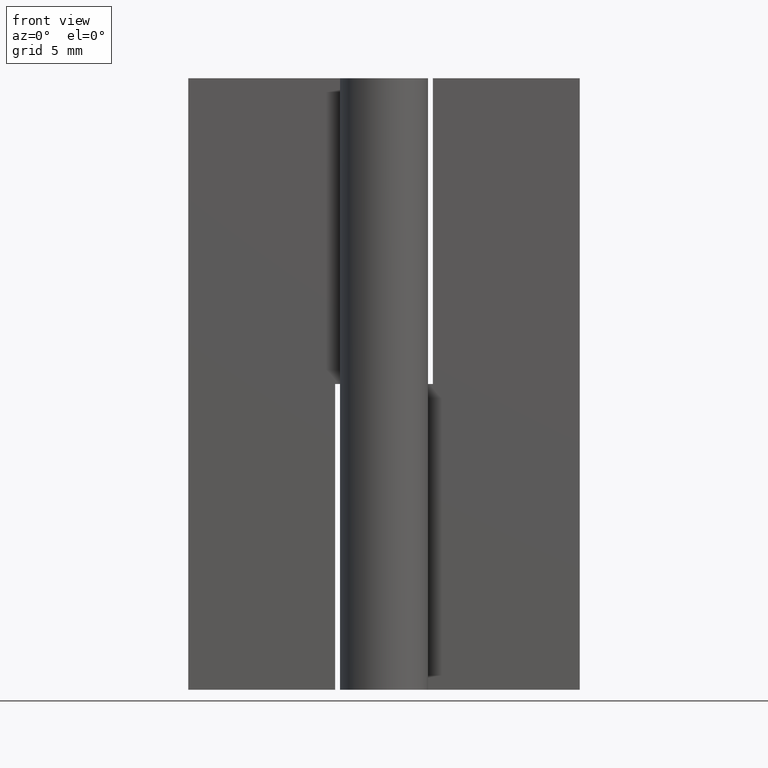
[diagram: clean part render]
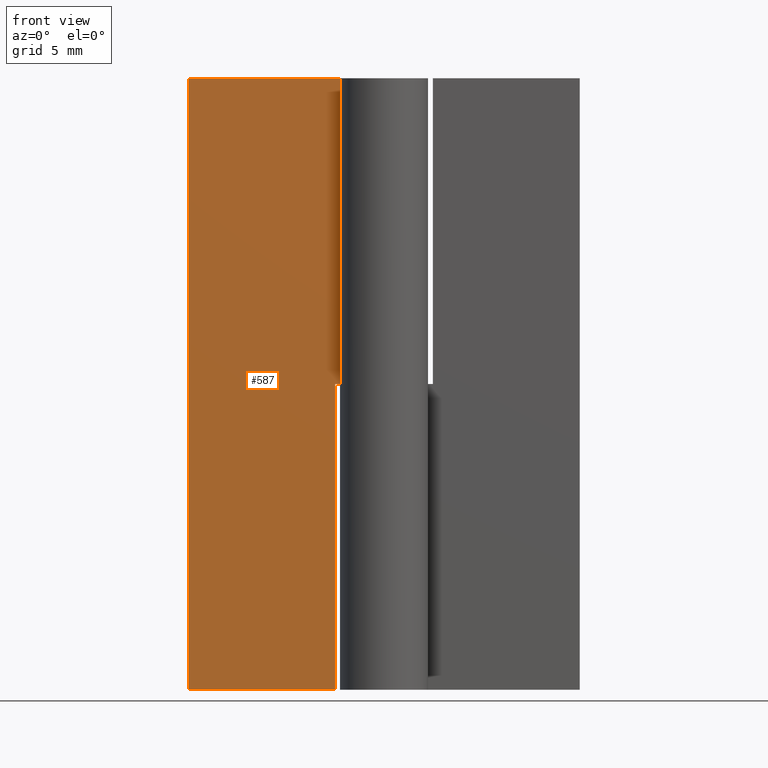
[diagram: same view with one face highlighted and labeled with its STEP entity id]
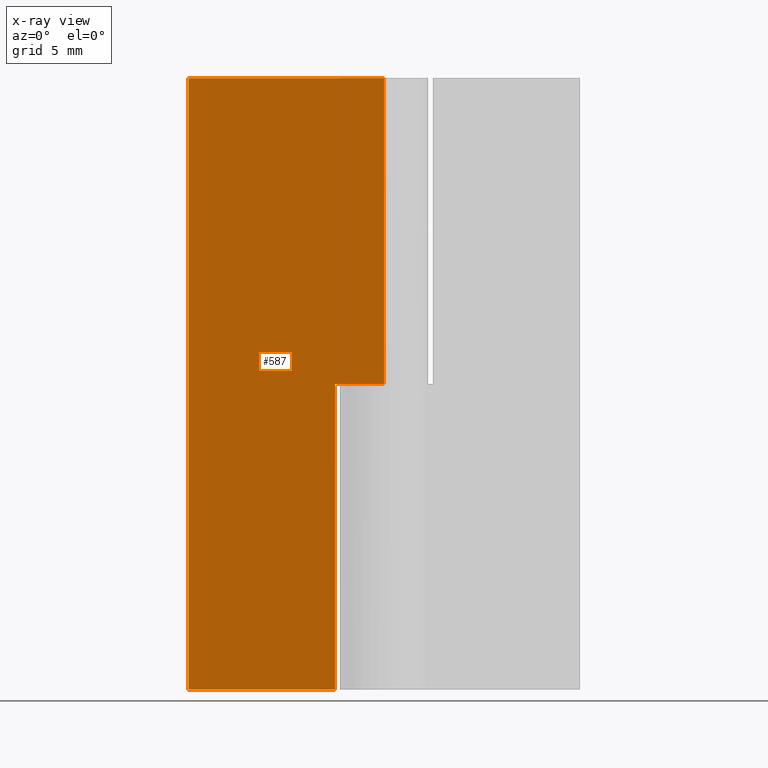
[diagram: x-ray of the same camera — body ghosted, the highlighted face saturated]
A machine part, front view. The second image highlights one B-rep face of the part: STEP entity #587.
The next image is the same camera in x-ray: the body ghosted, the highlighted face saturated — about 0% of this face is hidden behind the body in this view.
In plain terms, the highlighted face is a freeform B-spline surface patch.
Its self-contained STEP definition (entity closure, byte-faithful):
#319=CARTESIAN_POINT('',(-4.0,2.0,25.0));
#320=VERTEX_POINT('',#319);
#321=CARTESIAN_POINT('',(-4.0,2.0,0.0));
#322=VERTEX_POINT('',#321);
#323=CARTESIAN_POINT('',(-4.0,2.0,25.0));
#324=CARTESIAN_POINT('',(-4.0,2.0,0.0));
#325=QUASI_UNIFORM_CURVE('',1,(#323,#324),.UNSPECIFIED.,.F.,.U.);
#326=EDGE_CURVE('',#320,#322,#325,.T.);
#385=CARTESIAN_POINT('',(0.0,2.0,25.0));
#386=VERTEX_POINT('',#385);
#406=CARTESIAN_POINT('',(0.0,2.0,25.0));
#407=CARTESIAN_POINT('',(-4.0,2.0,25.0));
#408=QUASI_UNIFORM_CURVE('',1,(#406,#407),.UNSPECIFIED.,.F.,.U.);
#409=EDGE_CURVE('',#386,#320,#408,.T.);
#469=CARTESIAN_POINT('',(-16.0,2.0,49.999992000000098));
#470=VERTEX_POINT('',#469);
#476=CARTESIAN_POINT('',(0.0,2.0,49.999992000000098));
#477=VERTEX_POINT('',#476);
#478=CARTESIAN_POINT('',(-16.0,2.0,49.999992000000098));
#479=CARTESIAN_POINT('',(0.0,2.0,49.999992000000098));
#480=QUASI_UNIFORM_CURVE('',1,(#478,#479),.UNSPECIFIED.,.F.,.U.);
#481=EDGE_CURVE('',#470,#477,#480,.T.);
#511=CARTESIAN_POINT('',(-16.0,2.0,0.0));
#512=VERTEX_POINT('',#511);
#513=CARTESIAN_POINT('',(-16.0,2.0,0.0));
#514=CARTESIAN_POINT('',(-4.0,2.0,0.0));
#515=QUASI_UNIFORM_CURVE('',1,(#513,#514),.UNSPECIFIED.,.F.,.U.);
#516=EDGE_CURVE('',#512,#322,#515,.T.);
#562=CARTESIAN_POINT('',(0.0,2.0,25.0));
#563=CARTESIAN_POINT('',(0.0,2.0,49.999992000000098));
#564=QUASI_UNIFORM_CURVE('',1,(#562,#563),.UNSPECIFIED.,.F.,.U.);
#565=EDGE_CURVE('',#386,#477,#564,.T.);
#570=CARTESIAN_POINT('',(-16.799199968988891,2.0,52.497491972854569));
#571=CARTESIAN_POINT('',(-16.799199968988891,2.0,-2.497500866924001));
#572=CARTESIAN_POINT('',(0.799200398142339,2.0,52.497491972854561));
#573=CARTESIAN_POINT('',(0.799200398142339,2.0,-2.497500866924001));
#574=B_SPLINE_SURFACE_WITH_KNOTS('',1,1,((#570,#572),(#571,#573)),.UNSPECIFIED.,.F.,.F.,.U.,(2,2),(2,2),(0.0,54.994992839778568),(0.0,17.598400367131230),.UNSPECIFIED.);
#575=ORIENTED_EDGE('',*,*,#409,.F.);
#576=ORIENTED_EDGE('',*,*,#565,.T.);
#577=ORIENTED_EDGE('',*,*,#481,.F.);
#578=CARTESIAN_POINT('',(-16.0,2.0,0.0));
#579=CARTESIAN_POINT('',(-16.0,2.0,49.999992000000098));
#580=QUASI_UNIFORM_CURVE('',1,(#578,#579),.UNSPECIFIED.,.F.,.U.);
#581=EDGE_CURVE('',#512,#470,#580,.T.);
#582=ORIENTED_EDGE('',*,*,#581,.F.);
#583=ORIENTED_EDGE('',*,*,#516,.T.);
#584=ORIENTED_EDGE('',*,*,#326,.F.);
#585=EDGE_LOOP('',(#575,#576,#577,#582,#583,#584));
#586=FACE_OUTER_BOUND('',#585,.T.);
#587=ADVANCED_FACE('',(#586),#574,.T.);